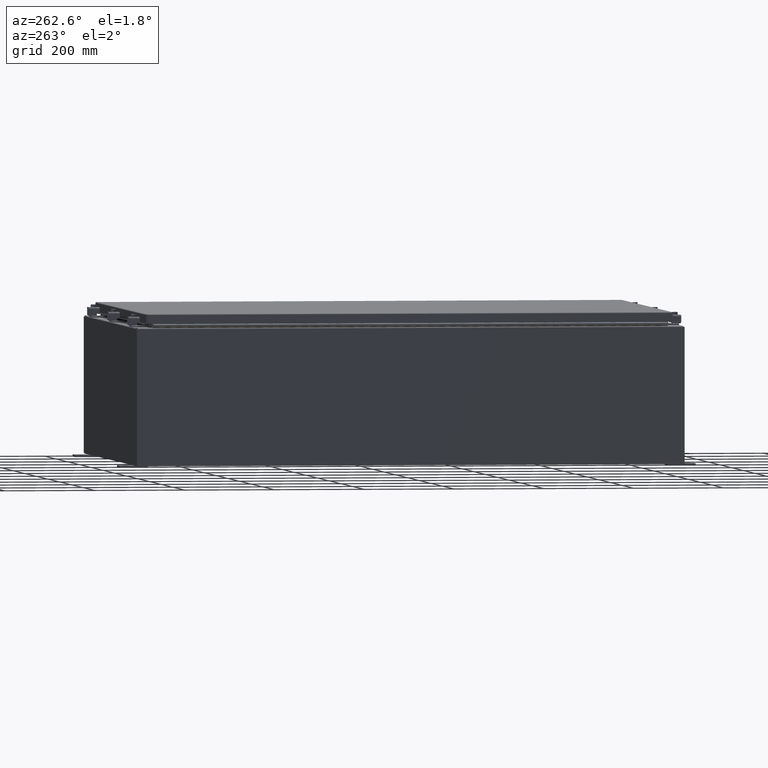
[diagram: clean part render]
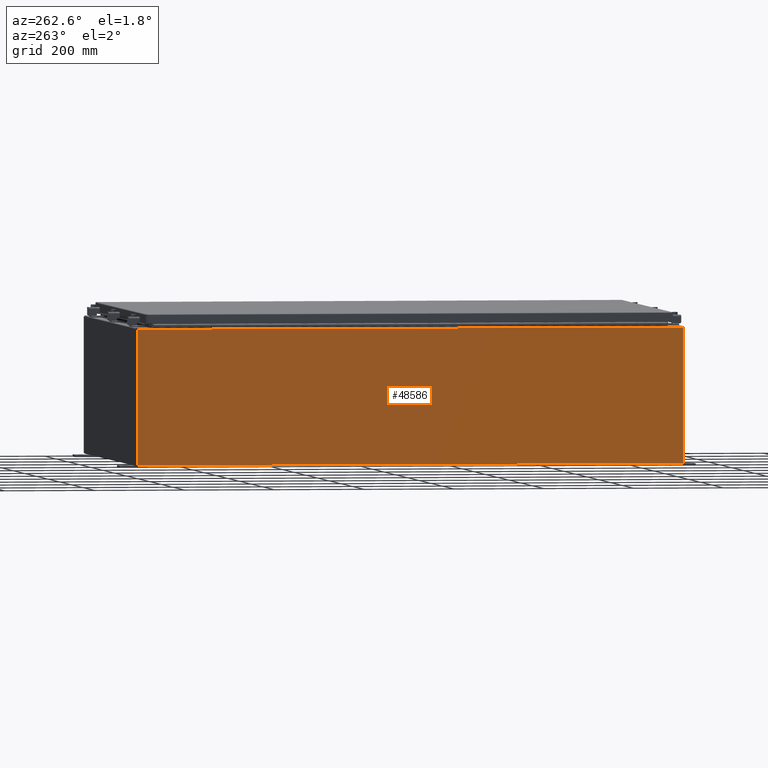
[diagram: same view with one face highlighted and labeled with its STEP entity id]
A machine part, auxiliary view. The second image highlights one B-rep face of the part: STEP entity #48586.
In plain terms, the highlighted planar face has unit normal (1, 0, 0).
Its self-contained STEP definition (entity closure, byte-faithful):
#2253 = VERTEX_POINT ( 'NONE', #32283 ) ;
#2643 = VERTEX_POINT ( 'NONE', #50323 ) ;
#2750 = VECTOR ( 'NONE', #16010, 39.37007874015748100 ) ;
#3359 = CARTESIAN_POINT ( 'NONE',  ( -18.00000000000000400, 23.92529999999998900, 0.01299999999999984700 ) ) ;
#4548 = CARTESIAN_POINT ( 'NONE',  ( -18.00000000000000400, 23.92529999999998900, -6.293710784286998800E-014 ) ) ;
#4602 = ORIENTED_EDGE ( 'NONE', *, *, #39553, .T. ) ;
#6314 = EDGE_CURVE ( 'NONE', #30393, #2253, #44822, .T. ) ;
#8394 = CARTESIAN_POINT ( 'NONE',  ( -18.00000000000000400, 0.0000000000000000000, -6.293710784286998800E-014 ) ) ;
#16010 = DIRECTION ( 'NONE',  ( -0.0000000000000000000, 1.000000000000000000, -0.0000000000000000000 ) ) ;
#17238 = LINE ( 'NONE', #26840, #49288 ) ;
#20659 = ORIENTED_EDGE ( 'NONE', *, *, #24459, .T. ) ;
#21288 = EDGE_CURVE ( 'NONE', #2643, #21875, #36004, .T. ) ;
#21875 = VERTEX_POINT ( 'NONE', #3359 ) ;
#24459 = EDGE_CURVE ( 'NONE', #2643, #30393, #17238, .T. ) ;
#25248 = DIRECTION ( 'NONE',  ( 3.482016343714355500E-015, 0.0000000000000000000, -1.000000000000000000 ) ) ;
#25566 = ORIENTED_EDGE ( 'NONE', *, *, #21288, .F. ) ;
#26840 = CARTESIAN_POINT ( 'NONE',  ( -18.00000000000000400, -23.92529999999999600, -6.293710784286998800E-014 ) ) ;
#30393 = VERTEX_POINT ( 'NONE', #40010 ) ;
#32283 = CARTESIAN_POINT ( 'NONE',  ( -18.00000000000004600, 23.92529999999998900, 11.83760000000000200 ) ) ;
#32396 = DIRECTION ( 'NONE',  ( 0.0000000000000000000, 1.000000000000000000, 0.0000000000000000000 ) ) ;
#33498 = DIRECTION ( 'NONE',  ( 1.000000000000000000, 0.0000000000000000000, 3.482016343714355100E-015 ) ) ;
#33767 = VECTOR ( 'NONE', #32396, 39.37007874015748100 ) ;
#35323 = LINE ( 'NONE', #4548, #45057 ) ;
#36004 = LINE ( 'NONE', #41278, #2750 ) ;
#39553 = EDGE_CURVE ( 'NONE', #2253, #21875, #35323, .T. ) ;
#40010 = CARTESIAN_POINT ( 'NONE',  ( -18.00000000000004600, -23.92529999999998600, 11.83760000000000200 ) ) ;
#41278 = CARTESIAN_POINT ( 'NONE',  ( -18.00000000000000400, 23.92529999999998900, 0.01299999999999984700 ) ) ;
#41856 = PLANE ( 'NONE',  #50990 ) ;
#42334 = FACE_OUTER_BOUND ( 'NONE', #52506, .T. ) ;
#44822 = LINE ( 'NONE', #44995, #33767 ) ;
#44995 = CARTESIAN_POINT ( 'NONE',  ( -18.00000000000004600, -23.92529999999998900, 11.83760000000000200 ) ) ;
#45057 = VECTOR ( 'NONE', #25248, 39.37007874015748100 ) ;
#46032 = DIRECTION ( 'NONE',  ( 3.482016343714355100E-015, 0.0000000000000000000, -1.000000000000000000 ) ) ;
#47687 = DIRECTION ( 'NONE',  ( -3.482016343714355500E-015, 0.0000000000000000000, 1.000000000000000000 ) ) ;
#48586 = ADVANCED_FACE ( 'NONE', ( #42334 ), #41856, .F. ) ;
#49288 = VECTOR ( 'NONE', #47687, 39.37007874015748100 ) ;
#50323 = CARTESIAN_POINT ( 'NONE',  ( -18.00000000000000400, -23.92529999999998600, 0.01299999999999984700 ) ) ;
#50714 = ORIENTED_EDGE ( 'NONE', *, *, #6314, .T. ) ;
#50990 = AXIS2_PLACEMENT_3D ( 'NONE', #8394, #33498, #46032 ) ;
#52506 = EDGE_LOOP ( 'NONE', ( #50714, #4602, #25566, #20659 ) ) ;